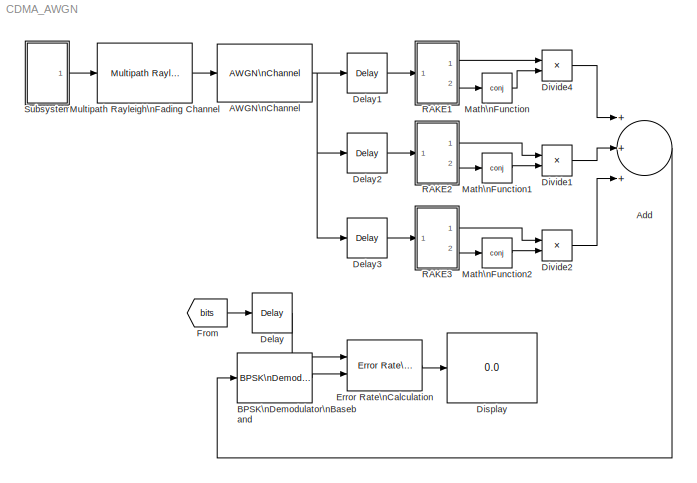
MODEL CDMA_AWGN
KIND model
BLOCK [Reference] AWGN\nChannel  REF=commchan3/AWGN\nChannel
  EbNodB = 4
  EsNodB = 10
  FunctionWithSeparateData = off
  GeneratePreprocessorConditionals = off
  InputProcessing = Columns as channels (frame based)
  Ports = [1, 1]
  Ps = 1
  RTWMemSecDataConstants = Inherit from model
  RTWMemSecDataInternal = Inherit from model
  RTWMemSecDataParameters = Inherit from model
  RTWMemSecFuncExecute = Inherit from model
  RTWMemSecFuncInitTerm = Inherit from model
  SID = 3
  SNRdB = 10
  ShowPortLabels = FromPortIcon
  SourceBlock = commchan3/AWGN\nChannel
  SourceType = AWGN Channel
  SystemSampleTime = -1
  Tsym = 1e-6
  UserData = DataTag0
  UserDataPersistent = on
  bitsPerSym = 1
  noiseMode = Signal to noise ratio  (Eb/No)
  seed = 67
  variance = 1
BLOCK [Sum] Add
  InputSameDT = off
  Inputs = +++
  OutDataTypeStr = Inherit: Inherit via internal rule
  Ports = [3, 1]
  SID = 67
  SaturateOnIntegerOverflow = off
BLOCK [Reference] BPSK\nDemodulator\nBaseband  REF=commdigbbndpm3/BPSK\nDemodulator\nBaseband
  DecType = Hard decision
  DialogController = commDDGCreate
  DialogControllerArgs = DataTag1
  Ph = 0
  Ports = [1, 1]
  SID = 4
  SourceBlock = commdigbbndpm3/BPSK\nDemodulator\nBaseband
  SourceType = BPSK Demodulator Baseband
  VarSource = Dialog
  Variance = 1
  derotateFactorDTMode = Same word length as input
  derotateFactorWordLen = 16
  outDtype = Inherit via internal rule
BLOCK [Reference] Delay  REF=dspsigops/Delay
  InputProcessing = Columns as channels (frame based)
  Ports = [1, 1]
  SID = 79
  SourceBlock = dspsigops/Delay
  SourceType = Delay
  UserData = DataTag2
  UserDataPersistent = on
  delay = 1
  dif_ic_for_ch = off
  dif_ic_for_dly = off
  dly_unit = Samples
  ic = 0
  ic_detail = off
  reset_popup = None
BLOCK [Reference] Delay1  REF=dspsigops/Delay
  InputProcessing = Columns as channels (frame based)
  Ports = [1, 1]
  SID = 81
  SourceBlock = dspsigops/Delay
  SourceType = Delay
  UserData = DataTag3
  UserDataPersistent = on
  delay = 63
  dif_ic_for_ch = off
  dif_ic_for_dly = off
  dly_unit = Samples
  ic = 0
  ic_detail = off
  reset_popup = None
BLOCK [Reference] Delay2  REF=dspsigops/Delay
  InputProcessing = Columns as channels (frame based)
  Ports = [1, 1]
  SID = 82
  SourceBlock = dspsigops/Delay
  SourceType = Delay
  UserData = DataTag4
  UserDataPersistent = on
  delay = 62
  dif_ic_for_ch = off
  dif_ic_for_dly = off
  dly_unit = Samples
  ic = 0
  ic_detail = off
  reset_popup = None
BLOCK [Reference] Delay3  REF=dspsigops/Delay
  InputProcessing = Columns as channels (frame based)
  Ports = [1, 1]
  SID = 83
  SourceBlock = dspsigops/Delay
  SourceType = Delay
  UserData = DataTag5
  UserDataPersistent = on
  delay = 61
  dif_ic_for_ch = off
  dif_ic_for_dly = off
  dly_unit = Samples
  ic = 0
  ic_detail = off
  reset_popup = None
BLOCK [Display] Display
  Decimation = 1
  Lockdown = off
  Ports = [1]
  SID = 7
BLOCK [Product] Divide1
  InputSameDT = off
  Inputs = **
  OutDataTypeStr = Inherit: Inherit via internal rule
  Ports = [2, 1]
  RndMeth = Floor
  SID = 65
  SaturateOnIntegerOverflow = off
BLOCK [Product] Divide2
  InputSameDT = off
  Inputs = **
  OutDataTypeStr = Inherit: Inherit via internal rule
  Ports = [2, 1]
  RndMeth = Floor
  SID = 66
  SaturateOnIntegerOverflow = off
BLOCK [Product] Divide4
  InputSameDT = off
  Inputs = **
  OutDataTypeStr = Inherit: Inherit via internal rule
  Ports = [2, 1]
  RndMeth = Floor
  SID = 34
  SaturateOnIntegerOverflow = off
BLOCK [Reference] Error Rate\nCalculation  REF=commsink2/Error Rate\nCalculation
  N = 0
  PMode = Port
  Ports = [2, 1]
  RsMode2 = off
  SID = 5
  SourceBlock = commsink2/Error Rate\nCalculation
  SourceType = Error Rate Calculation
  WsName = ErrorVec
  cp_mode = Entire frame
  maxBits = 1e6
  numErr = 100
  st_delay = 10
  stop = off
  subframe = []
BLOCK [From] From
  GotoTag = bits
  SID = 27
  TagVisibility = global
BLOCK [Math] Math\nFunction
  Operator = conj
  Ports = [1, 1]
  SID = 71
BLOCK [Math] Math\nFunction1
  Operator = conj
  Ports = [1, 1]
  SID = 72
BLOCK [Math] Math\nFunction2
  Operator = conj
  Ports = [1, 1]
  SID = 73
BLOCK [Reference] Multipath Rayleigh\nFading Channel  REF=commchan3/Multipath Rayleigh\nFading Channel
  FunctionWithSeparateData = off
  GeneratePreprocessorConditionals = off
  Ports = [1, 1]
  RTWMemSecDataConstants = Inherit from model
  RTWMemSecDataInternal = Inherit from model
  RTWMemSecDataParameters = Inherit from model
  RTWMemSecFuncExecute = Inherit from model
  RTWMemSecFuncInitTerm = Inherit from model
  SID = 28
  ShowPortLabels = FromPortIcon
  SourceBlock = commchan3/Multipath Rayleigh\nFading Channel
  SourceType = Multipath Rayleigh Fading Channel
  SystemSampleTime = -1
  avgPathGaindB = [0 -3 -6]
  centerFreqGaussian1 = 0.0
  centerFreqGaussian2 = 0.0
  coeffBell = 9
  coeffRounded = [1 -1.72 0.785]
  dopplerSpectrum = doppler.jakes
  enableProbe = 0
  freqMinMaxAJakes = [0 1]
  freqMinMaxRJakes = [0 1]
  gainGaussian1 = 0.5
  gainGaussian2 = 0.5
  maxDopplerShift = 40
  normalizePathGains = on
  openVisAtStart = off
  outDelay = off
  outPathGains = off
  pathDelays = [0 1e-6/63 2e-6/63]
  seed = 73
  sigmaGaussian = 1/sqrt(2)
  sigmaGaussian1 = 1/sqrt(2)
  sigmaGaussian2 = 1/sqrt(2)
  spectrumType = Jakes
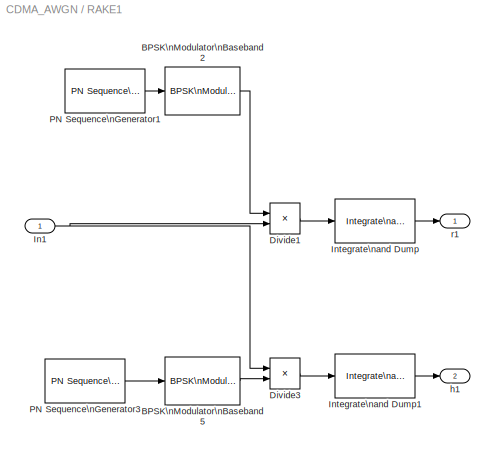
BLOCK [SubSystem] RAKE1
  FunctionWithSeparateData = off
  MaskHideContents = off
  MinAlgLoopOccurrences = off
  Opaque = off
  Ports = [1, 2]
  PropExecContextOutsideSubsystem = off
  RTWSystemCode = Auto
  RequestExecContextInheritance = off
  SID = 37
BLOCK [Reference] RAKE1/BPSK\nModulator\nBaseband2  REF=commdigbbndpm3/BPSK\nModulator\nBaseband
  DialogController = commDDGCreate
  DialogControllerArgs = DataTag6
  FunctionWithSeparateData = off
  GeneratePreprocessorConditionals = off
  Ph = 0
  Ports = [1, 1]
  RTWMemSecDataConstants = Inherit from model
  RTWMemSecDataInternal = Inherit from model
  RTWMemSecDataParameters = Inherit from model
  RTWMemSecFuncExecute = Inherit from model
  RTWMemSecFuncInitTerm = Inherit from model
  SID = 15
  ShowPortLabels = FromPortIcon
  SourceBlock = commdigbbndpm3/BPSK\nModulator\nBaseband
  SourceType = BPSK Modulator Baseband
  SystemSampleTime = -1
  outDtype = double
  outFracLen = 15
  outFracLenMode = Best precision
  outUDDataType = sfix(16)
  outWordLen = 16
BLOCK [Reference] RAKE1/BPSK\nModulator\nBaseband5  REF=commdigbbndpm3/BPSK\nModulator\nBaseband
  DialogController = commDDGCreate
  DialogControllerArgs = DataTag7
  FunctionWithSeparateData = off
  GeneratePreprocessorConditionals = off
  Ph = 0
  Ports = [1, 1]
  RTWMemSecDataConstants = Inherit from model
  RTWMemSecDataInternal = Inherit from model
  RTWMemSecDataParameters = Inherit from model
  RTWMemSecFuncExecute = Inherit from model
  RTWMemSecFuncInitTerm = Inherit from model
  SID = 30
  ShowPortLabels = FromPortIcon
  SourceBlock = commdigbbndpm3/BPSK\nModulator\nBaseband
  SourceType = BPSK Modulator Baseband
  SystemSampleTime = -1
  outDtype = double
  outFracLen = 15
  outFracLenMode = Best precision
  outUDDataType = sfix(16)
  outWordLen = 16
BLOCK [Product] RAKE1/Divide1
  InputSameDT = off
  Inputs = **
  OutDataTypeStr = Inherit: Inherit via internal rule
  Ports = [2, 1]
  RndMeth = Floor
  SID = 11
  SaturateOnIntegerOverflow = off
BLOCK [Product] RAKE1/Divide3
  InputSameDT = off
  Inputs = **
  OutDataTypeStr = Inherit: Inherit via internal rule
  Ports = [2, 1]
  RndMeth = Floor
  SID = 32
  SaturateOnIntegerOverflow = off
BLOCK [Inport] RAKE1/In1
  IconDisplay = Port number
  SID = 39
BLOCK [Reference] RAKE1/Integrate\nand Dump  REF=commfilt2/Integrate\nand Dump
  DialogController = commDDGCreate
  DialogControllerArgs = DataTag8
  LockScale = off
  Ports = [1, 1]
  SID = 13
  SourceBlock = commfilt2/Integrate\nand Dump
  SourceType = Integrate and Dump
  accumFracLength = 30
  accumMode = Inherit via internal rule
  accumWordLength = 32
  nodump = off
  obssamples = 63
  offsetsamples = 0
  outputFracLength = 30
  outputMode = Same as accumulator
  outputWordLength = 32
  overflowMode = off
  roundingMode = Floor
BLOCK [Reference] RAKE1/Integrate\nand Dump1  REF=commfilt2/Integrate\nand Dump
  DialogController = commDDGCreate
  DialogControllerArgs = DataTag9
  LockScale = off
  Ports = [1, 1]
  SID = 33
  SourceBlock = commfilt2/Integrate\nand Dump
  SourceType = Integrate and Dump
  accumFracLength = 30
  accumMode = Inherit via internal rule
  accumWordLength = 32
  nodump = off
  obssamples = 63
  offsetsamples = 0
  outputFracLength = 30
  outputMode = Same as accumulator
  outputWordLength = 32
  overflowMode = off
  roundingMode = Floor
BLOCK [Reference] RAKE1/PN Sequence\nGenerator1  REF=commseqgen2/PN Sequence\nGenerator
  Ports = [0, 1]
  SID = 12
  SourceBlock = commseqgen2/PN Sequence\nGenerator
  SourceType = PN Sequence Generator
  Ts = 1e-6/63
  bitPackDataSigned = off
  bitPackedOutDType = double
  bitPackedOutputs = off
  frameBased = on
  ini_sta = [0 0 0 0 0 1]
  numPackedBits = 8
  outBitMaskSource = Dialog parameter
  outDataType = double
  poly = [1 0 0 0 0 1 1]
  reset = off
  sampPerFrame = 63
  shift = 0
BLOCK [Reference] RAKE1/PN Sequence\nGenerator3  REF=commseqgen2/PN Sequence\nGenerator
  Ports = [0, 1]
  SID = 31
  SourceBlock = commseqgen2/PN Sequence\nGenerator
  SourceType = PN Sequence Generator
  Ts = 1e-6/63
  bitPackDataSigned = off
  bitPackedOutDType = double
  bitPackedOutputs = off
  frameBased = on
  ini_sta = [0 1 0 1 0 1]
  numPackedBits = 8
  outBitMaskSource = Dialog parameter
  outDataType = double
  poly = [1 0 0 0 0 1 1]
  reset = off
  sampPerFrame = 63
  shift = 0
BLOCK [Outport] RAKE1/h1
  IconDisplay = Port number
  Port = 2
  SID = 40
BLOCK [Outport] RAKE1/r1
  IconDisplay = Port number
  SID = 38
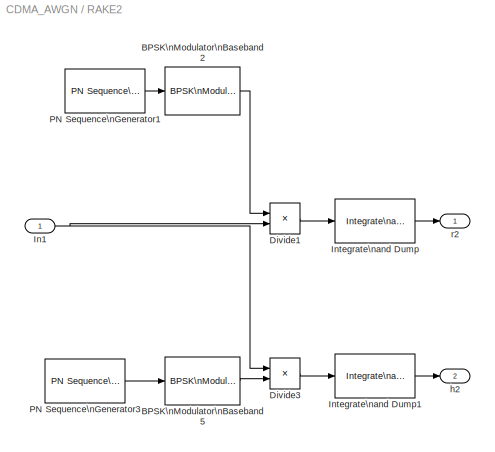
BLOCK [SubSystem] RAKE2
  FunctionWithSeparateData = off
  MaskHideContents = off
  MinAlgLoopOccurrences = off
  Opaque = off
  Ports = [1, 2]
  PropExecContextOutsideSubsystem = off
  RTWSystemCode = Auto
  RequestExecContextInheritance = off
  SID = 41
BLOCK [Reference] RAKE2/BPSK\nModulator\nBaseband2  REF=commdigbbndpm3/BPSK\nModulator\nBaseband
  DialogController = commDDGCreate
  DialogControllerArgs = DataTag10
  FunctionWithSeparateData = off
  GeneratePreprocessorConditionals = off
  Ph = 0
  Ports = [1, 1]
  RTWMemSecDataConstants = Inherit from model
  RTWMemSecDataInternal = Inherit from model
  RTWMemSecDataParameters = Inherit from model
  RTWMemSecFuncExecute = Inherit from model
  RTWMemSecFuncInitTerm = Inherit from model
  SID = 43
  ShowPortLabels = FromPortIcon
  SourceBlock = commdigbbndpm3/BPSK\nModulator\nBaseband
  SourceType = BPSK Modulator Baseband
  SystemSampleTime = -1
  outDtype = double
  outFracLen = 15
  outFracLenMode = Best precision
  outUDDataType = sfix(16)
  outWordLen = 16
BLOCK [Reference] RAKE2/BPSK\nModulator\nBaseband5  REF=commdigbbndpm3/BPSK\nModulator\nBaseband
  DialogController = commDDGCreate
  DialogControllerArgs = DataTag11
  FunctionWithSeparateData = off
  GeneratePreprocessorConditionals = off
  Ph = 0
  Ports = [1, 1]
  RTWMemSecDataConstants = Inherit from model
  RTWMemSecDataInternal = Inherit from model
  RTWMemSecDataParameters = Inherit from model
  RTWMemSecFuncExecute = Inherit from model
  RTWMemSecFuncInitTerm = Inherit from model
  SID = 44
  ShowPortLabels = FromPortIcon
  SourceBlock = commdigbbndpm3/BPSK\nModulator\nBaseband
  SourceType = BPSK Modulator Baseband
  SystemSampleTime = -1
  outDtype = double
  outFracLen = 15
  outFracLenMode = Best precision
  outUDDataType = sfix(16)
  outWordLen = 16
BLOCK [Product] RAKE2/Divide1
  InputSameDT = off
  Inputs = **
  OutDataTypeStr = Inherit: Inherit via internal rule
  Ports = [2, 1]
  RndMeth = Floor
  SID = 45
  SaturateOnIntegerOverflow = off
BLOCK [Product] RAKE2/Divide3
  InputSameDT = off
  Inputs = **
  OutDataTypeStr = Inherit: Inherit via internal rule
  Ports = [2, 1]
  RndMeth = Floor
  SID = 46
  SaturateOnIntegerOverflow = off
BLOCK [Inport] RAKE2/In1
  IconDisplay = Port number
  SID = 42
BLOCK [Reference] RAKE2/Integrate\nand Dump  REF=commfilt2/Integrate\nand Dump
  DialogController = commDDGCreate
  DialogControllerArgs = DataTag12
  LockScale = off
  Ports = [1, 1]
  SID = 47
  SourceBlock = commfilt2/Integrate\nand Dump
  SourceType = Integrate and Dump
  accumFracLength = 30
  accumMode = Inherit via internal rule
  accumWordLength = 32
  nodump = off
  obssamples = 63
  offsetsamples = 0
  outputFracLength = 30
  outputMode = Same as accumulator
  outputWordLength = 32
  overflowMode = off
  roundingMode = Floor
BLOCK [Reference] RAKE2/Integrate\nand Dump1  REF=commfilt2/Integrate\nand Dump
  DialogController = commDDGCreate
  DialogControllerArgs = DataTag13
  LockScale = off
  Ports = [1, 1]
  SID = 48
  SourceBlock = commfilt2/Integrate\nand Dump
  SourceType = Integrate and Dump
  accumFracLength = 30
  accumMode = Inherit via internal rule
  accumWordLength = 32
  nodump = off
  obssamples = 63
  offsetsamples = 0
  outputFracLength = 30
  outputMode = Same as accumulator
  outputWordLength = 32
  overflowMode = off
  roundingMode = Floor
BLOCK [Reference] RAKE2/PN Sequence\nGenerator1  REF=commseqgen2/PN Sequence\nGenerator
  Ports = [0, 1]
  SID = 49
  SourceBlock = commseqgen2/PN Sequence\nGenerator
  SourceType = PN Sequence Generator
  Ts = 1e-6/63
  bitPackDataSigned = off
  bitPackedOutDType = double
  bitPackedOutputs = off
  frameBased = on
  ini_sta = [0 0 0 0 0 1]
  numPackedBits = 8
  outBitMaskSource = Dialog parameter
  outDataType = double
  poly = [1 0 0 0 0 1 1]
  reset = off
  sampPerFrame = 63
  shift = 0
BLOCK [Reference] RAKE2/PN Sequence\nGenerator3  REF=commseqgen2/PN Sequence\nGenerator
  Ports = [0, 1]
  SID = 50
  SourceBlock = commseqgen2/PN Sequence\nGenerator
  SourceType = PN Sequence Generator
  Ts = 1e-6/63
  bitPackDataSigned = off
  bitPackedOutDType = double
  bitPackedOutputs = off
  frameBased = on
  ini_sta = [0 1 0 1 0 1]
  numPackedBits = 8
  outBitMaskSource = Dialog parameter
  outDataType = double
  poly = [1 0 0 0 0 1 1]
  reset = off
  sampPerFrame = 63
  shift = 0
BLOCK [Outport] RAKE2/h2
  IconDisplay = Port number
  Port = 2
  SID = 52
BLOCK [Outport] RAKE2/r2
  IconDisplay = Port number
  SID = 51
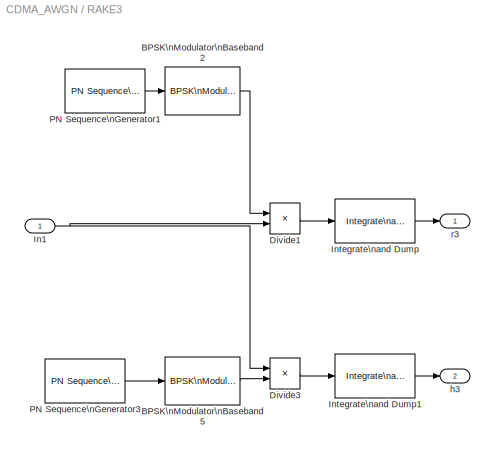
BLOCK [SubSystem] RAKE3
  FunctionWithSeparateData = off
  MaskHideContents = off
  MinAlgLoopOccurrences = off
  Opaque = off
  Ports = [1, 2]
  PropExecContextOutsideSubsystem = off
  RTWSystemCode = Auto
  RequestExecContextInheritance = off
  SID = 53
BLOCK [Reference] RAKE3/BPSK\nModulator\nBaseband2  REF=commdigbbndpm3/BPSK\nModulator\nBaseband
  DialogController = commDDGCreate
  DialogControllerArgs = DataTag14
  FunctionWithSeparateData = off
  GeneratePreprocessorConditionals = off
  Ph = 0
  Ports = [1, 1]
  RTWMemSecDataConstants = Inherit from model
  RTWMemSecDataInternal = Inherit from model
  RTWMemSecDataParameters = Inherit from model
  RTWMemSecFuncExecute = Inherit from model
  RTWMemSecFuncInitTerm = Inherit from model
  SID = 55
  ShowPortLabels = FromPortIcon
  SourceBlock = commdigbbndpm3/BPSK\nModulator\nBaseband
  SourceType = BPSK Modulator Baseband
  SystemSampleTime = -1
  outDtype = double
  outFracLen = 15
  outFracLenMode = Best precision
  outUDDataType = sfix(16)
  outWordLen = 16
BLOCK [Reference] RAKE3/BPSK\nModulator\nBaseband5  REF=commdigbbndpm3/BPSK\nModulator\nBaseband
  DialogController = commDDGCreate
  DialogControllerArgs = DataTag15
  FunctionWithSeparateData = off
  GeneratePreprocessorConditionals = off
  Ph = 0
  Ports = [1, 1]
  RTWMemSecDataConstants = Inherit from model
  RTWMemSecDataInternal = Inherit from model
  RTWMemSecDataParameters = Inherit from model
  RTWMemSecFuncExecute = Inherit from model
  RTWMemSecFuncInitTerm = Inherit from model
  SID = 56
  ShowPortLabels = FromPortIcon
  SourceBlock = commdigbbndpm3/BPSK\nModulator\nBaseband
  SourceType = BPSK Modulator Baseband
  SystemSampleTime = -1
  outDtype = double
  outFracLen = 15
  outFracLenMode = Best precision
  outUDDataType = sfix(16)
  outWordLen = 16
BLOCK [Product] RAKE3/Divide1
  InputSameDT = off
  Inputs = **
  OutDataTypeStr = Inherit: Inherit via internal rule
  Ports = [2, 1]
  RndMeth = Floor
  SID = 57
  SaturateOnIntegerOverflow = off
BLOCK [Product] RAKE3/Divide3
  InputSameDT = off
  Inputs = **
  OutDataTypeStr = Inherit: Inherit via internal rule
  Ports = [2, 1]
  RndMeth = Floor
  SID = 58
  SaturateOnIntegerOverflow = off
BLOCK [Inport] RAKE3/In1
  IconDisplay = Port number
  SID = 54
BLOCK [Reference] RAKE3/Integrate\nand Dump  REF=commfilt2/Integrate\nand Dump
  DialogController = commDDGCreate
  DialogControllerArgs = DataTag16
  LockScale = off
  Ports = [1, 1]
  SID = 59
  SourceBlock = commfilt2/Integrate\nand Dump
  SourceType = Integrate and Dump
  accumFracLength = 30
  accumMode = Inherit via internal rule
  accumWordLength = 32
  nodump = off
  obssamples = 63
  offsetsamples = 0
  outputFracLength = 30
  outputMode = Same as accumulator
  outputWordLength = 32
  overflowMode = off
  roundingMode = Floor
BLOCK [Reference] RAKE3/Integrate\nand Dump1  REF=commfilt2/Integrate\nand Dump
  DialogController = commDDGCreate
  DialogControllerArgs = DataTag17
  LockScale = off
  Ports = [1, 1]
  SID = 60
  SourceBlock = commfilt2/Integrate\nand Dump
  SourceType = Integrate and Dump
  accumFracLength = 30
  accumMode = Inherit via internal rule
  accumWordLength = 32
  nodump = off
  obssamples = 63
  offsetsamples = 0
  outputFracLength = 30
  outputMode = Same as accumulator
  outputWordLength = 32
  overflowMode = off
  roundingMode = Floor
BLOCK [Reference] RAKE3/PN Sequence\nGenerator1  REF=commseqgen2/PN Sequence\nGenerator
  Ports = [0, 1]
  SID = 61
  SourceBlock = commseqgen2/PN Sequence\nGenerator
  SourceType = PN Sequence Generator
  Ts = 1e-6/63
  bitPackDataSigned = off
  bitPackedOutDType = double
  bitPackedOutputs = off
  frameBased = on
  ini_sta = [0 0 0 0 0 1]
  numPackedBits = 8
  outBitMaskSource = Dialog parameter
  outDataType = double
  poly = [1 0 0 0 0 1 1]
  reset = off
  sampPerFrame = 63
  shift = 0
BLOCK [Reference] RAKE3/PN Sequence\nGenerator3  REF=commseqgen2/PN Sequence\nGenerator
  Ports = [0, 1]
  SID = 62
  SourceBlock = commseqgen2/PN Sequence\nGenerator
  SourceType = PN Sequence Generator
  Ts = 1e-6/63
  bitPackDataSigned = off
  bitPackedOutDType = double
  bitPackedOutputs = off
  frameBased = on
  ini_sta = [0 1 0 1 0 1]
  numPackedBits = 8
  outBitMaskSource = Dialog parameter
  outDataType = double
  poly = [1 0 0 0 0 1 1]
  reset = off
  sampPerFrame = 63
  shift = 0
BLOCK [Outport] RAKE3/h3
  IconDisplay = Port number
  Port = 2
  SID = 64
BLOCK [Outport] RAKE3/r3
  IconDisplay = Port number
  SID = 63
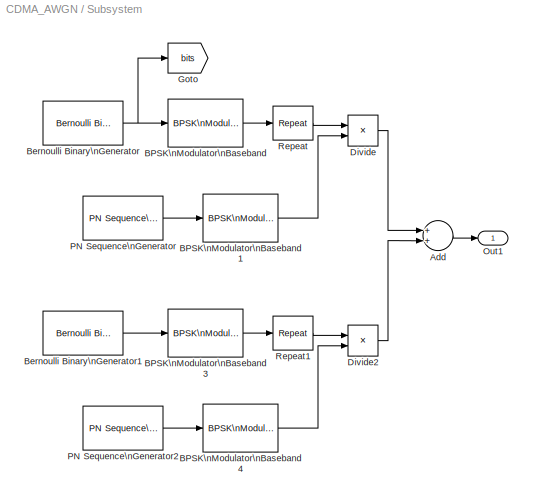
BLOCK [SubSystem] Subsystem
  FunctionWithSeparateData = off
  MaskHideContents = off
  MinAlgLoopOccurrences = off
  Opaque = off
  Ports = [0, 1]
  PropExecContextOutsideSubsystem = off
  RTWSystemCode = Auto
  RequestExecContextInheritance = off
  SID = 35
BLOCK [Sum] Subsystem/Add
  InputSameDT = off
  OutDataTypeStr = Inherit: Inherit via internal rule
  Ports = [2, 1]
  SID = 24
  SaturateOnIntegerOverflow = off
BLOCK [Reference] Subsystem/BPSK\nModulator\nBaseband  REF=commdigbbndpm3/BPSK\nModulator\nBaseband
  DialogController = commDDGCreate
  DialogControllerArgs = DataTag18
  FunctionWithSeparateData = off
  GeneratePreprocessorConditionals = off
  Ph = 0
  Ports = [1, 1]
  RTWMemSecDataConstants = Inherit from model
  RTWMemSecDataInternal = Inherit from model
  RTWMemSecDataParameters = Inherit from model
  RTWMemSecFuncExecute = Inherit from model
  RTWMemSecFuncInitTerm = Inherit from model
  SID = 2
  ShowPortLabels = FromPortIcon
  SourceBlock = commdigbbndpm3/BPSK\nModulator\nBaseband
  SourceType = BPSK Modulator Baseband
  SystemSampleTime = -1
  outDtype = double
  outFracLen = 15
  outFracLenMode = Best precision
  outUDDataType = sfix(16)
  outWordLen = 16
BLOCK [Reference] Subsystem/BPSK\nModulator\nBaseband1  REF=commdigbbndpm3/BPSK\nModulator\nBaseband
  DialogController = commDDGCreate
  DialogControllerArgs = DataTag19
  FunctionWithSeparateData = off
  GeneratePreprocessorConditionals = off
  Ph = 0
  Ports = [1, 1]
  RTWMemSecDataConstants = Inherit from model
  RTWMemSecDataInternal = Inherit from model
  RTWMemSecDataParameters = Inherit from model
  RTWMemSecFuncExecute = Inherit from model
  RTWMemSecFuncInitTerm = Inherit from model
  SID = 14
  ShowPortLabels = FromPortIcon
  SourceBlock = commdigbbndpm3/BPSK\nModulator\nBaseband
  SourceType = BPSK Modulator Baseband
  SystemSampleTime = -1
  outDtype = double
  outFracLen = 15
  outFracLenMode = Best precision
  outUDDataType = sfix(16)
  outWordLen = 16
BLOCK [Reference] Subsystem/BPSK\nModulator\nBaseband3  REF=commdigbbndpm3/BPSK\nModulator\nBaseband
  DialogController = commDDGCreate
  DialogControllerArgs = DataTag20
  FunctionWithSeparateData = off
  GeneratePreprocessorConditionals = off
  Ph = 0
  Ports = [1, 1]
  RTWMemSecDataConstants = Inherit from model
  RTWMemSecDataInternal = Inherit from model
  RTWMemSecDataParameters = Inherit from model
  RTWMemSecFuncExecute = Inherit from model
  RTWMemSecFuncInitTerm = Inherit from model
  SID = 18
  ShowPortLabels = FromPortIcon
  SourceBlock = commdigbbndpm3/BPSK\nModulator\nBaseband
  SourceType = BPSK Modulator Baseband
  SystemSampleTime = -1
  outDtype = double
  outFracLen = 15
  outFracLenMode = Best precision
  outUDDataType = sfix(16)
  outWordLen = 16
BLOCK [Reference] Subsystem/BPSK\nModulator\nBaseband4  REF=commdigbbndpm3/BPSK\nModulator\nBaseband
  DialogController = commDDGCreate
  DialogControllerArgs = DataTag21
  FunctionWithSeparateData = off
  GeneratePreprocessorConditionals = off
  Ph = 0
  Ports = [1, 1]
  RTWMemSecDataConstants = Inherit from model
  RTWMemSecDataInternal = Inherit from model
  RTWMemSecDataParameters = Inherit from model
  RTWMemSecFuncExecute = Inherit from model
  RTWMemSecFuncInitTerm = Inherit from model
  SID = 19
  ShowPortLabels = FromPortIcon
  SourceBlock = commdigbbndpm3/BPSK\nModulator\nBaseband
  SourceType = BPSK Modulator Baseband
  SystemSampleTime = -1
  outDtype = double
  outFracLen = 15
  outFracLenMode = Best precision
  outUDDataType = sfix(16)
  outWordLen = 16
BLOCK [Reference] Subsystem/Bernoulli Binary\nGenerator  REF=commrandsrc2/Bernoulli Binary\nGenerator
  DialogController = commDDGCreate
  DialogControllerArgs = DataTag22
  FunctionWithSeparateData = off
  GeneratePreprocessorConditionals = off
  P = 0.5
  Ports = [0, 1]
  RTWMemSecDataConstants = Inherit from model
  RTWMemSecDataInternal = Inherit from model
  RTWMemSecDataParameters = Inherit from model
  RTWMemSecFuncExecute = Inherit from model
  RTWMemSecFuncInitTerm = Inherit from model
  SID = 1
  ShowPortLabels = FromPortIcon
  SourceBlock = commrandsrc2/Bernoulli Binary\nGenerator
  SourceType = Bernoulli Binary Generator
  SystemSampleTime = -1
  Ts = 1e-6
  frameBased = off
  orient = off
  outDataType = double
  sampPerFrame = 1
  seed = 61
BLOCK [Reference] Subsystem/Bernoulli Binary\nGenerator1  REF=commrandsrc2/Bernoulli Binary\nGenerator
  DialogController = commDDGCreate
  DialogControllerArgs = DataTag23
  FunctionWithSeparateData = off
  GeneratePreprocessorConditionals = off
  P = 1
  Ports = [0, 1]
  RTWMemSecDataConstants = Inherit from model
  RTWMemSecDataInternal = Inherit from model
  RTWMemSecDataParameters = Inherit from model
  RTWMemSecFuncExecute = Inherit from model
  RTWMemSecFuncInitTerm = Inherit from model
  SID = 20
  ShowPortLabels = FromPortIcon
  SourceBlock = commrandsrc2/Bernoulli Binary\nGenerator
  SourceType = Bernoulli Binary Generator
  SystemSampleTime = -1
  Ts = 1e-6
  frameBased = off
  orient = off
  outDataType = double
  sampPerFrame = 1
  seed = 61
BLOCK [Product] Subsystem/Divide
  InputSameDT = off
  Inputs = **
  OutDataTypeStr = Inherit: Inherit via internal rule
  Ports = [2, 1]
  RndMeth = Floor
  SID = 9
  SaturateOnIntegerOverflow = off
BLOCK [Product] Subsystem/Divide2
  InputSameDT = off
  Inputs = **
  OutDataTypeStr = Inherit: Inherit via internal rule
  Ports = [2, 1]
  RndMeth = Floor
  SID = 21
  SaturateOnIntegerOverflow = off
BLOCK [Goto] Subsystem/Goto
  GotoTag = bits
  SID = 26
  TagVisibility = global
BLOCK [Outport] Subsystem/Out1
  IconDisplay = Port number
  SID = 36
BLOCK [Reference] Subsystem/PN Sequence\nGenerator  REF=commseqgen2/PN Sequence\nGenerator
  Ports = [0, 1]
  SID = 10
  SourceBlock = commseqgen2/PN Sequence\nGenerator
  SourceType = PN Sequence Generator
  Ts = 1e-6/63
  bitPackDataSigned = off
  bitPackedOutDType = double
  bitPackedOutputs = off
  frameBased = on
  ini_sta = [0 0 0 0 0 1]
  numPackedBits = 8
  outBitMaskSource = Dialog parameter
  outDataType = double
  poly = [1 0 0 0 0 1 1]
  reset = off
  sampPerFrame = 63
  shift = 0
BLOCK [Reference] Subsystem/PN Sequence\nGenerator2  REF=commseqgen2/PN Sequence\nGenerator
  Ports = [0, 1]
  SID = 22
  SourceBlock = commseqgen2/PN Sequence\nGenerator
  SourceType = PN Sequence Generator
  Ts = 1e-6/63
  bitPackDataSigned = off
  bitPackedOutDType = double
  bitPackedOutputs = off
  frameBased = on
  ini_sta = [0 1 0 1 0 1]
  numPackedBits = 8
  outBitMaskSource = Dialog parameter
  outDataType = double
  poly = [1 0 0 0 0 1 1]
  reset = off
  sampPerFrame = 63
  shift = 0
BLOCK [Reference] Subsystem/Repeat  REF=dspsigops/Repeat
  InputProcessing = Columns as channels (frame based)
  N = 63
  Ports = [1, 1]
  RateOptions = Enforce single-rate processing
  SID = 8
  SourceBlock = dspsigops/Repeat
  SourceType = Repeat
  UserData = DataTag24
  UserDataPersistent = on
  ic = 0
  mode = Unused parameter value
BLOCK [Reference] Subsystem/Repeat1  REF=dspsigops/Repeat
  InputProcessing = Columns as channels (frame based)
  N = 63
  Ports = [1, 1]
  RateOptions = Enforce single-rate processing
  SID = 23
  SourceBlock = dspsigops/Repeat
  SourceType = Repeat
  UserData = DataTag25
  UserDataPersistent = on
  ic = 0
  mode = Unused parameter value
NET AWGN\nChannel:1 -> Delay1:1, Delay2:1, Delay3:1
LINE Add:1 -> BPSK\nDemodulator\nBaseband:1
LINE BPSK\nDemodulator\nBaseband:1 -> Error Rate\nCalculation:2
LINE Delay1:1 -> RAKE1:1
LINE Delay2:1 -> RAKE2:1
LINE Delay3:1 -> RAKE3:1
LINE Delay:1 -> Error Rate\nCalculation:1
LINE Divide1:1 -> Add:2
LINE Divide2:1 -> Add:3
LINE Divide4:1 -> Add:1
LINE Error Rate\nCalculation:1 -> Display:1
LINE From:1 -> Delay:1
LINE Math\nFunction1:1 -> Divide1:2
LINE Math\nFunction2:1 -> Divide2:2
LINE Math\nFunction:1 -> Divide4:2
LINE Multipath Rayleigh\nFading Channel:1 -> AWGN\nChannel:1
LINE RAKE1/BPSK\nModulator\nBaseband2:1 -> RAKE1/Divide1:1
LINE RAKE1/BPSK\nModulator\nBaseband5:1 -> RAKE1/Divide3:2
LINE RAKE1/Divide1:1 -> RAKE1/Integrate\nand Dump:1
LINE RAKE1/Divide3:1 -> RAKE1/Integrate\nand Dump1:1
NET RAKE1/In1:1 -> RAKE1/Divide1:2, RAKE1/Divide3:1
LINE RAKE1/Integrate\nand Dump1:1 -> RAKE1/h1:1
LINE RAKE1/Integrate\nand Dump:1 -> RAKE1/r1:1
LINE RAKE1/PN Sequence\nGenerator1:1 -> RAKE1/BPSK\nModulator\nBaseband2:1
LINE RAKE1/PN Sequence\nGenerator3:1 -> RAKE1/BPSK\nModulator\nBaseband5:1
LINE RAKE1:1 -> Divide4:1
LINE RAKE1:2 -> Math\nFunction:1
LINE RAKE2/BPSK\nModulator\nBaseband2:1 -> RAKE2/Divide1:1
LINE RAKE2/BPSK\nModulator\nBaseband5:1 -> RAKE2/Divide3:2
LINE RAKE2/Divide1:1 -> RAKE2/Integrate\nand Dump:1
LINE RAKE2/Divide3:1 -> RAKE2/Integrate\nand Dump1:1
NET RAKE2/In1:1 -> RAKE2/Divide1:2, RAKE2/Divide3:1
LINE RAKE2/Integrate\nand Dump1:1 -> RAKE2/h2:1
LINE RAKE2/Integrate\nand Dump:1 -> RAKE2/r2:1
LINE RAKE2/PN Sequence\nGenerator1:1 -> RAKE2/BPSK\nModulator\nBaseband2:1
LINE RAKE2/PN Sequence\nGenerator3:1 -> RAKE2/BPSK\nModulator\nBaseband5:1
LINE RAKE2:1 -> Divide1:1
LINE RAKE2:2 -> Math\nFunction1:1
LINE RAKE3/BPSK\nModulator\nBaseband2:1 -> RAKE3/Divide1:1
LINE RAKE3/BPSK\nModulator\nBaseband5:1 -> RAKE3/Divide3:2
LINE RAKE3/Divide1:1 -> RAKE3/Integrate\nand Dump:1
LINE RAKE3/Divide3:1 -> RAKE3/Integrate\nand Dump1:1
NET RAKE3/In1:1 -> RAKE3/Divide1:2, RAKE3/Divide3:1
LINE RAKE3/Integrate\nand Dump1:1 -> RAKE3/h3:1
LINE RAKE3/Integrate\nand Dump:1 -> RAKE3/r3:1
LINE RAKE3/PN Sequence\nGenerator1:1 -> RAKE3/BPSK\nModulator\nBaseband2:1
LINE RAKE3/PN Sequence\nGenerator3:1 -> RAKE3/BPSK\nModulator\nBaseband5:1
LINE RAKE3:1 -> Divide2:1
LINE RAKE3:2 -> Math\nFunction2:1
LINE Subsystem/Add:1 -> Subsystem/Out1:1
LINE Subsystem/BPSK\nModulator\nBaseband1:1 -> Subsystem/Divide:2
LINE Subsystem/BPSK\nModulator\nBaseband3:1 -> Subsystem/Repeat1:1
LINE Subsystem/BPSK\nModulator\nBaseband4:1 -> Subsystem/Divide2:2
LINE Subsystem/BPSK\nModulator\nBaseband:1 -> Subsystem/Repeat:1
LINE Subsystem/Bernoulli Binary\nGenerator1:1 -> Subsystem/BPSK\nModulator\nBaseband3:1
NET Subsystem/Bernoulli Binary\nGenerator:1 -> Subsystem/BPSK\nModulator\nBaseband:1, Subsystem/Goto:1
LINE Subsystem/Divide2:1 -> Subsystem/Add:2
LINE Subsystem/Divide:1 -> Subsystem/Add:1
LINE Subsystem/PN Sequence\nGenerator2:1 -> Subsystem/BPSK\nModulator\nBaseband4:1
LINE Subsystem/PN Sequence\nGenerator:1 -> Subsystem/BPSK\nModulator\nBaseband1:1
LINE Subsystem/Repeat1:1 -> Subsystem/Divide2:1
LINE Subsystem/Repeat:1 -> Subsystem/Divide:1
LINE Subsystem:1 -> Multipath Rayleigh\nFading Channel:1
note: NET lines group one-source signal fan-out (src -> all destinations, sorted); 1:1 wires keep LINE
